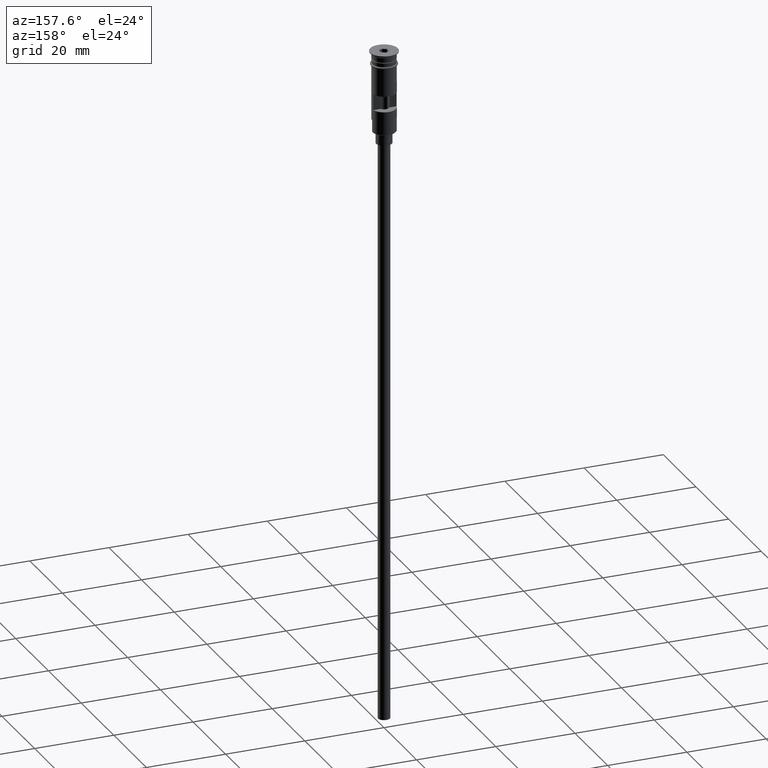
[diagram: clean part render]
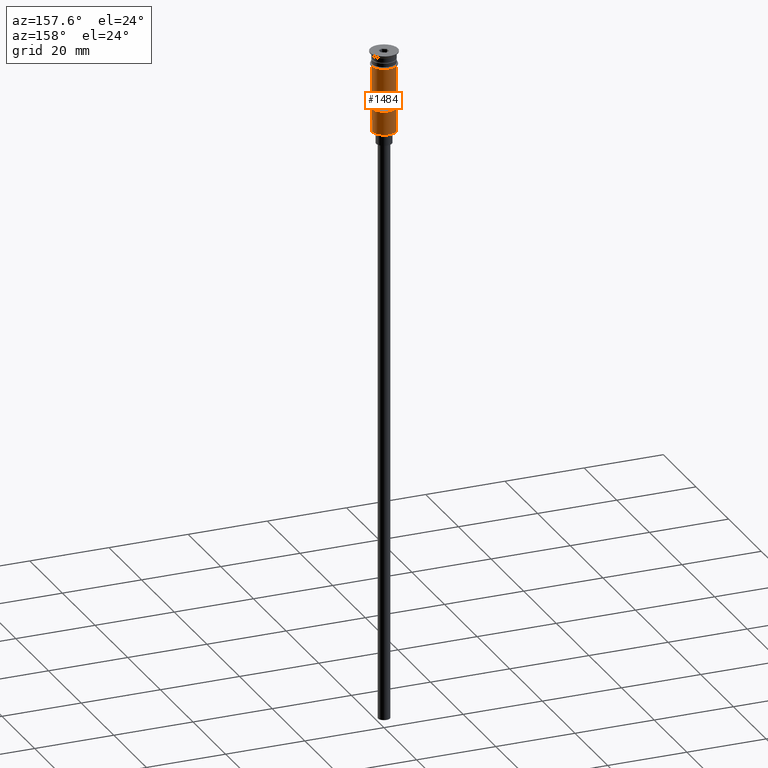
[diagram: same view with one face highlighted and labeled with its STEP entity id]
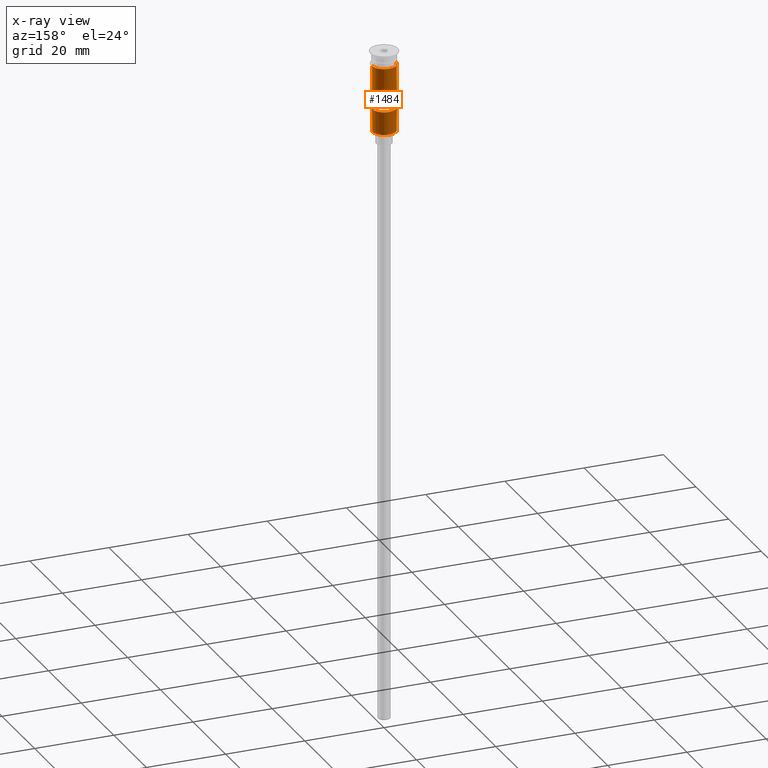
[diagram: x-ray of the same camera — body ghosted, the highlighted face saturated]
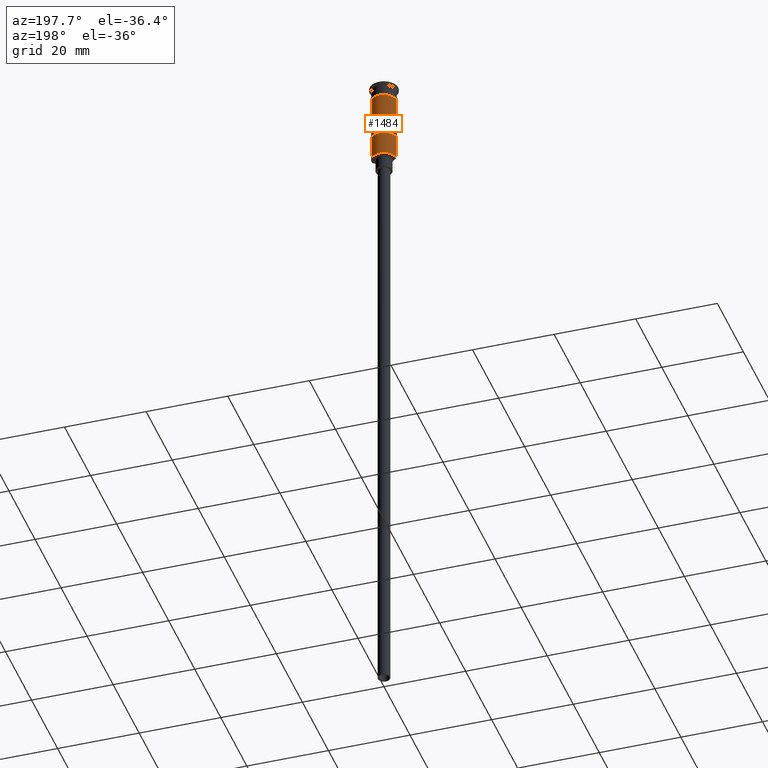
[diagram: same view with one face highlighted and labeled with its STEP entity id]
A machine part, auxiliary view. The second image highlights one B-rep face of the part: STEP entity #1484.
The next image is the same camera in x-ray: the body ghosted, the highlighted face saturated — about 0% of this face is hidden behind the body in this view.
A second angle (auxiliary view) of the same face is appended — the face is thin or edge-on in the first view.
In plain terms, the highlighted cylindrical surface (edge-blend (fillet) strip) has radius 3 mm, axis along (-0, -0, 1).
Its self-contained STEP definition (entity closure, byte-faithful):
#18 = DIRECTION ( 'NONE',  ( -0.000000000000000000, -0.000000000000000000, 1.000000000000000000 ) ) ;
#21 = CARTESIAN_POINT ( 'NONE',  ( -2.939387691339810260, 0.5999999999999994227, 0.000000000000000000 ) ) ;
#22 = CARTESIAN_POINT ( 'NONE',  ( -2.999999999999995115, 0.000000000000000000, -20.50000000000000000 ) ) ;
#43 = EDGE_CURVE ( 'NONE', #1121, #198, #267, .T. ) ;
#62 = CARTESIAN_POINT ( 'NONE',  ( -2.939387691339810260, 0.5999999999999994227, -14.50000000000000000 ) ) ;
#63 = VERTEX_POINT ( 'NONE', #143 ) ;
#80 = VERTEX_POINT ( 'NONE', #521 ) ;
#93 = VERTEX_POINT ( 'NONE', #416 ) ;
#95 = EDGE_CURVE ( 'NONE', #63, #1208, #1133, .T. ) ;
#106 = VERTEX_POINT ( 'NONE', #513 ) ;
#142 = EDGE_CURVE ( 'NONE', #1208, #106, #776, .T. ) ;
#143 = CARTESIAN_POINT ( 'NONE',  ( 2.999999999999996891, 3.673940397442055924E-16, -17.30000000000000782 ) ) ;
#146 = DIRECTION ( 'NONE',  ( -0.000000000000000000, 0.000000000000000000, -1.000000000000000000 ) ) ;
#151 = EDGE_LOOP ( 'NONE', ( #554, #1396, #1581, #580, #490, #1593 ) ) ;
#156 = DIRECTION ( 'NONE',  ( -0.000000000000000000, -0.000000000000000000, 1.000000000000000000 ) ) ;
#185 = LINE ( 'NONE', #1565, #192 ) ;
#192 = VECTOR ( 'NONE', #926, 1000.000000000000000 ) ;
#198 = VERTEX_POINT ( 'NONE', #803 ) ;
#210 = AXIS2_PLACEMENT_3D ( 'NONE', #910, #18, #1022 ) ;
#236 = VERTEX_POINT ( 'NONE', #438 ) ;
#237 = CARTESIAN_POINT ( 'NONE',  ( 2.999999999999998668, 0.000000000000000000, -3.499999999999998668 ) ) ;
#267 = LINE ( 'NONE', #22, #1454 ) ;
#292 = VECTOR ( 'NONE', #1504, 1000.000000000000000 ) ;
#297 = DIRECTION ( 'NONE',  ( -1.000000000000000000, 0.000000000000000000, 0.000000000000000000 ) ) ;
#313 = AXIS2_PLACEMENT_3D ( 'NONE', #389, #146, #894 ) ;
#335 = CARTESIAN_POINT ( 'NONE',  ( 0.000000000000000000, 0.000000000000000000, 0.000000000000000000 ) ) ;
#372 = ORIENTED_EDGE ( 'NONE', *, *, #724, .F. ) ;
#389 = CARTESIAN_POINT ( 'NONE',  ( 0.000000000000000000, 0.000000000000000000, -10.50000000000000000 ) ) ;
#416 = CARTESIAN_POINT ( 'NONE',  ( -2.939387691339810260, 0.5999999999999994227, -10.50000000000000000 ) ) ;
#438 = CARTESIAN_POINT ( 'NONE',  ( 2.939387691339810260, 0.5999999999999994227, -14.50000000000000000 ) ) ;
#450 = FACE_BOUND ( 'NONE', #799, .T. ) ;
#455 = ORIENTED_EDGE ( 'NONE', *, *, #479, .F. ) ;
#459 = EDGE_CURVE ( 'NONE', #484, #63, #1500, .T. ) ;
#460 = ORIENTED_EDGE ( 'NONE', *, *, #1552, .F. ) ;
#479 = EDGE_CURVE ( 'NONE', #1575, #93, #756, .T. ) ;
#484 = VERTEX_POINT ( 'NONE', #889 ) ;
#490 = ORIENTED_EDGE ( 'NONE', *, *, #459, .F. ) ;
#510 = LINE ( 'NONE', #1009, #292 ) ;
#513 = CARTESIAN_POINT ( 'NONE',  ( -2.999999999999999112, 3.673940397442058389E-16, -3.499999999999998668 ) ) ;
#521 = CARTESIAN_POINT ( 'NONE',  ( 2.939387691339810260, 0.5999999999999994227, -10.50000000000000000 ) ) ;
#545 = CIRCLE ( 'NONE', #702, 2.999999999999996891 ) ;
#554 = ORIENTED_EDGE ( 'NONE', *, *, #43, .T. ) ;
#561 = CARTESIAN_POINT ( 'NONE',  ( -2.999999999999995115, 0.000000000000000000, -20.29999999999995808 ) ) ;
#579 = DIRECTION ( 'NONE',  ( 1.000000000000000000, 0.000000000000000000, 0.000000000000000000 ) ) ;
#580 = ORIENTED_EDGE ( 'NONE', *, *, #95, .F. ) ;
#606 = DIRECTION ( 'NONE',  ( -1.000000000000000000, 0.000000000000000000, 0.000000000000000000 ) ) ;
#626 = DIRECTION ( 'NONE',  ( -0.000000000000000000, -0.000000000000000000, 1.000000000000000000 ) ) ;
#698 = AXIS2_PLACEMENT_3D ( 'NONE', #908, #1409, #297 ) ;
#702 = AXIS2_PLACEMENT_3D ( 'NONE', #968, #1333, #606 ) ;
#724 = EDGE_CURVE ( 'NONE', #236, #1575, #1143, .T. ) ;
#750 = VECTOR ( 'NONE', #626, 1000.000000000000000 ) ;
#756 = LINE ( 'NONE', #21, #1252 ) ;
#763 = DIRECTION ( 'NONE',  ( -0.000000000000000000, -0.000000000000000000, 1.000000000000000000 ) ) ;
#776 = CIRCLE ( 'NONE', #210, 2.999999999999998668 ) ;
#779 = CARTESIAN_POINT ( 'NONE',  ( 2.999999999999995115, 3.673940397442053952E-16, -20.50000000000000000 ) ) ;
#799 = EDGE_LOOP ( 'NONE', ( #460, #857, #455, #372 ) ) ;
#803 = CARTESIAN_POINT ( 'NONE',  ( -2.999999999999995115, 0.000000000000000000, -17.30000000000000782 ) ) ;
#857 = ORIENTED_EDGE ( 'NONE', *, *, #978, .F. ) ;
#889 = CARTESIAN_POINT ( 'NONE',  ( 2.999999999999995115, 3.673940397442053952E-16, -20.29999999999995808 ) ) ;
#894 = DIRECTION ( 'NONE',  ( 1.000000000000000000, 0.000000000000000000, 0.000000000000000000 ) ) ;
#908 = CARTESIAN_POINT ( 'NONE',  ( 0.000000000000000000, 0.000000000000000000, -14.50000000000000000 ) ) ;
#910 = CARTESIAN_POINT ( 'NONE',  ( 0.000000000000000000, 0.000000000000000000, -3.499999999999998668 ) ) ;
#926 = DIRECTION ( 'NONE',  ( 0.000000000000000000, 0.000000000000000000, -1.000000000000000000 ) ) ;
#958 = EDGE_CURVE ( 'NONE', #198, #106, #510, .T. ) ;
#968 = CARTESIAN_POINT ( 'NONE',  ( 0.000000000000000000, 0.000000000000000000, -20.29999999999995808 ) ) ;
#978 = EDGE_CURVE ( 'NONE', #93, #80, #1016, .T. ) ;
#994 = DIRECTION ( 'NONE',  ( -0.000000000000000000, -0.000000000000000000, 1.000000000000000000 ) ) ;
#1009 = CARTESIAN_POINT ( 'NONE',  ( -2.999999999999996891, 3.673940397442055924E-16, 0.000000000000000000 ) ) ;
#1016 = CIRCLE ( 'NONE', #313, 2.999999999999996891 ) ;
#1021 = AXIS2_PLACEMENT_3D ( 'NONE', #335, #1419, #579 ) ;
#1022 = DIRECTION ( 'NONE',  ( 1.000000000000000000, 0.000000000000000000, 0.000000000000000000 ) ) ;
#1121 = VERTEX_POINT ( 'NONE', #561 ) ;
#1133 = LINE ( 'NONE', #1378, #750 ) ;
#1143 = CIRCLE ( 'NONE', #698, 2.999999999999996891 ) ;
#1197 = EDGE_CURVE ( 'NONE', #484, #1121, #545, .T. ) ;
#1208 = VERTEX_POINT ( 'NONE', #237 ) ;
#1252 = VECTOR ( 'NONE', #994, 1000.000000000000000 ) ;
#1294 = CYLINDRICAL_SURFACE ( 'NONE', #1021, 2.999999999999996891 ) ;
#1333 = DIRECTION ( 'NONE',  ( 0.000000000000000000, 0.000000000000000000, 1.000000000000000000 ) ) ;
#1378 = CARTESIAN_POINT ( 'NONE',  ( 2.999999999999996891, 0.000000000000000000, 0.000000000000000000 ) ) ;
#1396 = ORIENTED_EDGE ( 'NONE', *, *, #958, .T. ) ;
#1409 = DIRECTION ( 'NONE',  ( 0.000000000000000000, 0.000000000000000000, 1.000000000000000000 ) ) ;
#1419 = DIRECTION ( 'NONE',  ( -0.000000000000000000, -0.000000000000000000, 1.000000000000000000 ) ) ;
#1449 = FACE_OUTER_BOUND ( 'NONE', #151, .T. ) ;
#1454 = VECTOR ( 'NONE', #156, 1000.000000000000000 ) ;
#1484 = ADVANCED_FACE ( 'NONE', ( #450, #1449 ), #1294, .T. ) ;
#1500 = LINE ( 'NONE', #779, #1534 ) ;
#1504 = DIRECTION ( 'NONE',  ( -0.000000000000000000, -0.000000000000000000, 1.000000000000000000 ) ) ;
#1534 = VECTOR ( 'NONE', #763, 1000.000000000000000 ) ;
#1552 = EDGE_CURVE ( 'NONE', #80, #236, #185, .T. ) ;
#1565 = CARTESIAN_POINT ( 'NONE',  ( 2.939387691339810260, 0.5999999999999994227, 0.000000000000000000 ) ) ;
#1575 = VERTEX_POINT ( 'NONE', #62 ) ;
#1581 = ORIENTED_EDGE ( 'NONE', *, *, #142, .F. ) ;
#1593 = ORIENTED_EDGE ( 'NONE', *, *, #1197, .T. ) ;